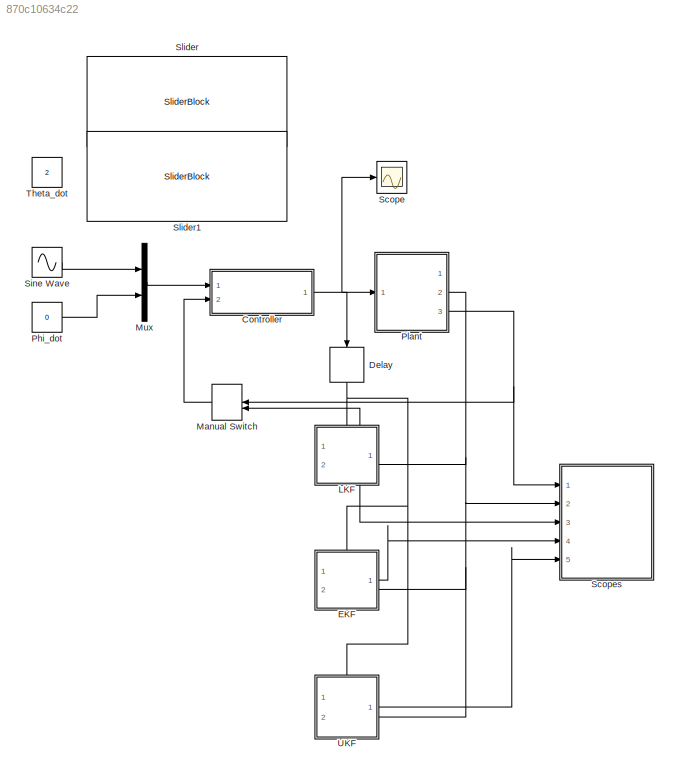
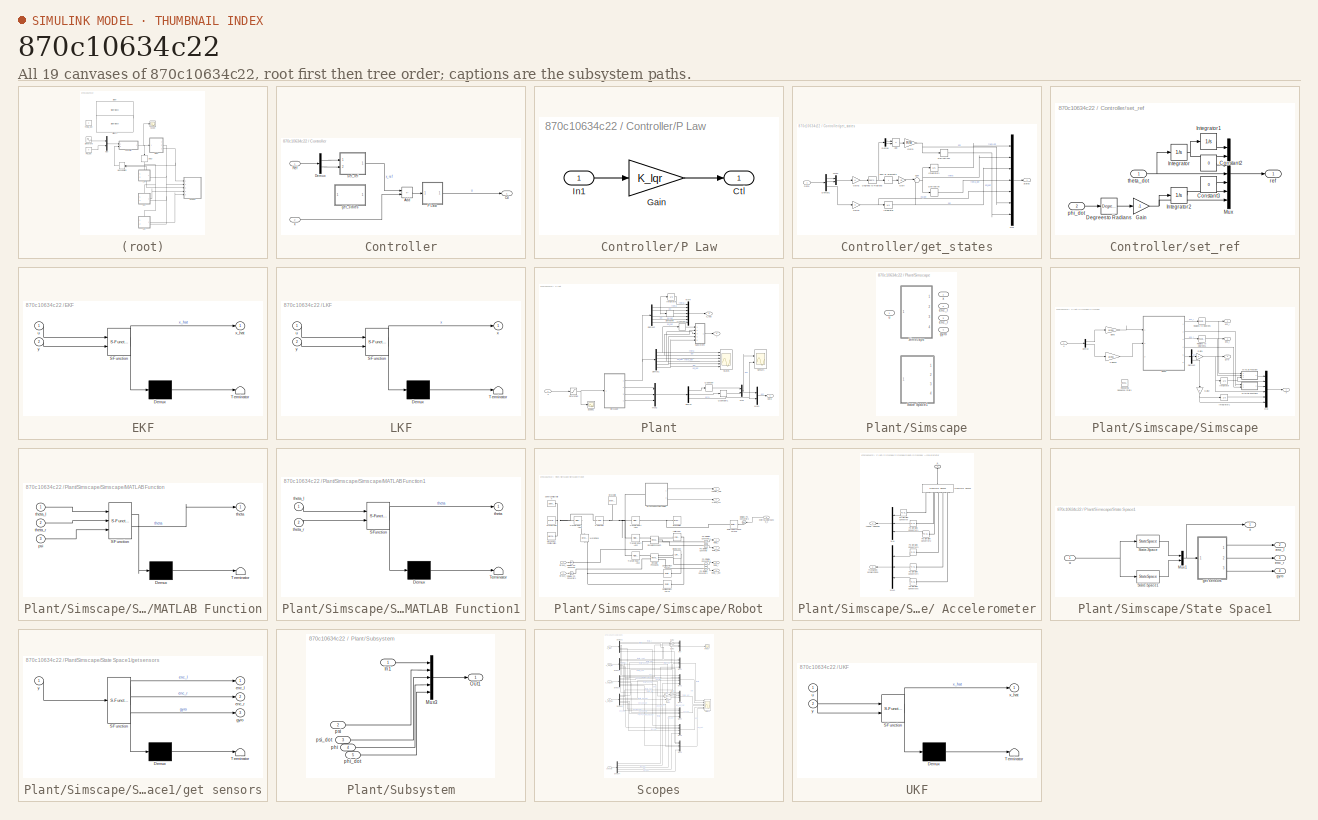
[diagram: thumbnail index - all 19 canvases of the model, root first then tree order]
MODEL slx_870c10634c22
KIND model
CONFIG AbsTol = auto
CONFIG EnableMultiTasking = off
CONFIG FixedStep = 1e-3
CONFIG InitFcn = init\npreload
CONFIG MaxStep = auto
CONFIG MinStep = auto
CONFIG PreLoadFcn = preload
CONFIG RelTol = 1e-3
CONFIG SampleTimeConstraint = Unconstrained
CONFIG SolverName = FixedStepAuto
CONFIG StartTime = 0.0
CONFIG StopTime = 10
BLOCK [SubSystem] Controller
  Ports = [2, 1]
  RequestExecContextInheritance = off
  SystemSampleTime = 0.01
BLOCK [Sum] Controller/Add
  IconShape = rectangular
  Inputs = +-
  Ports = [2, 1]
BLOCK [Outport] Controller/Ctl
  VectorParamsAs1DForOutWhenUnconnected = off
BLOCK [Demux] Controller/Demux
  Outputs = 2
  Ports = [1, 2]
BLOCK [SubSystem] Controller/P Law
  Ports = [1, 1]
  RequestExecContextInheritance = off
  SystemSampleTime = 0.01
  TreatAsAtomicUnit = on
BLOCK [Outport] Controller/P Law/Ctl
BLOCK [Gain] Controller/P Law/Gain
  Gain = K_lqr
  Multiplication = Matrix(K*u)
BLOCK [Inport] Controller/P Law/In1
BLOCK [Inport] Controller/Ref
BLOCK [SubSystem] Controller/get_states
  Commented = on
  Ports = [1, 1]
  RequestExecContextInheritance = off
BLOCK [Sum] Controller/get_states/Add
  IconShape = rectangular
  Inputs = -+
  Ports = [2, 1]
BLOCK [Inport] Controller/get_states/Data
BLOCK [Reference] Controller/get_states/Degrees to Radians  REF=simulink_extras/Transformations/Degrees to
Radians
  Commented = through
  Ports = [1, 1]
  SourceBlock = simulink_extras/Transformations/Degrees to\nRadians
  SourceProductBaseCode = SL
  SourceType = DegreesToRadians
BLOCK [Demux] Controller/get_states/Demux
  Outputs = 2
  Ports = [1, 2]
BLOCK [Demux] Controller/get_states/Demux1
  Outputs = 3
  Ports = [1, 3]
BLOCK [Derivative] Controller/get_states/Derivative
BLOCK [Derivative] Controller/get_states/Derivative1
  CoefficientInTFapproximation = 0.01
BLOCK [Gain] Controller/get_states/Gain
  Gain = 1/2
BLOCK [Gain] Controller/get_states/Gain1
  Gain = R/W
BLOCK [Gain] Controller/get_states/Gain2
BLOCK [Gain] Controller/get_states/Gain3
BLOCK [Integrator] Controller/get_states/Integrator
  Ports = [1, 1]
BLOCK [Integrator] Controller/get_states/Integrator1
  Ports = [1, 1]
BLOCK [Mux] Controller/get_states/Mux
  DisplayOption = bar
  Inputs = 7
  Ports = [7, 1]
BLOCK [Mux] Controller/get_states/Mux1
  DisplayOption = bar
  Inputs = 2
  Ports = [2, 1]
BLOCK [Outport] Controller/get_states/States
  VectorParamsAs1DForOutWhenUnconnected = off
BLOCK [Sum] Controller/get_states/Sum
  Inputs = |++
  Ports = [2, 1]
BLOCK [Sum] Controller/get_states/Sum of Elements
  IconShape = rectangular
  Inputs = +
  Ports = [1, 1]
BLOCK [SubSystem] Controller/set_ref
  Ports = [2, 1]
  RequestExecContextInheritance = off
BLOCK [Constant] Controller/set_ref/Constant2
  Value = 0
BLOCK [Constant] Controller/set_ref/Constant3
  Value = 0
BLOCK [Reference] Controller/set_ref/Degrees to Radians  REF=simulink_extras/Transformations/Degrees to
Radians
  Commented = through
  Ports = [1, 1]
  SourceBlock = simulink_extras/Transformations/Degrees to\nRadians
  SourceProductBaseCode = SL
  SourceType = DegreesToRadians
BLOCK [Gain] Controller/set_ref/Gain
  Gain = -1
BLOCK [Integrator] Controller/set_ref/Integrator
  Ports = [1, 1]
BLOCK [Integrator] Controller/set_ref/Integrator1
  Ports = [1, 1]
BLOCK [Integrator] Controller/set_ref/Integrator2
  Ports = [1, 1]
BLOCK [Mux] Controller/set_ref/Mux
  DisplayOption = bar
  Inputs = 7
  Ports = [7, 1]
BLOCK [Inport] Controller/set_ref/phi_dot
  Port = 2
BLOCK [Outport] Controller/set_ref/ref
  VectorParamsAs1DForOutWhenUnconnected = off
BLOCK [Inport] Controller/set_ref/theta_dot
BLOCK [Inport] Controller/x
  Port = 2
BLOCK [Delay] Delay
  DelayLength = 1
  InputPortMap = u0
  NameLocation = left
  Ports = [1, 1]
BLOCK [SubSystem] EKF
  ErrorFcn = Stateflow.Translate.translate
  PermitHierarchicalResolution = ExplicitOnly
  PortSchema = {"entries":[{"content":{"sides":[{"content":{"connectorIds":[]},"type":"ConnectorPlacement.EquallySpacedRectSide","uuid":"7365e1c5-a084-40ff-bf9b-f6bb3324d08a"},{"content":{"connectorIds":["In2","Out1"],"side":"RIGHT"},"type":"ConnectorPlacement.EquallySpacedRectSide","uuid":"e745d55e-2f97-4317-b982-3a71d81393c6"},{"content":{"connectorIds":["In1"],"side":"TOP"},"type":"ConnectorPlacement.EquallyS...<+246ch>
  Ports = [2, 1]
  RequestExecContextInheritance = off
  SFBlockType = Chart
  SystemSampleTime = Ts
  TreatAsAtomicUnit = on
BLOCK [Demux] EKF/ Demux 
  Outputs = 1
  Ports = [1, 1]
BLOCK [S-Function] EKF/ SFunction 
  EnableBusSupport = on
  FunctionName = sf_sfun
  Parameters = H_ekf,Jm,Jphi,Jpsi,Jw,Kt,L,M,P0_ekf,Q_ekf,R,R_ekf,Ts,W,fm,fw,g,m,n,x0_ekf
  PortCounts = [2 2]
  Ports = [2, 2]
  SFcnIsStateOwnerBlock = off
  SFunctionDeploymentMode = off
  Tag = Stateflow S-Function 4
BLOCK [Terminator] EKF/ Terminator 
BLOCK [Inport] EKF/u
BLOCK [Outport] EKF/x_hat
BLOCK [Inport] EKF/y
  Port = 2
BLOCK [SubSystem] LKF
  ErrorFcn = Stateflow.Translate.translate
  PermitHierarchicalResolution = ExplicitOnly
  PortSchema = {"entries":[{"content":{"sides":[{"content":{"connectorIds":["Out1"]},"type":"ConnectorPlacement.EquallySpacedRectSide","uuid":"7365e1c5-a084-40ff-bf9b-f6bb3324d08a"},{"content":{"connectorIds":["In2"],"side":"RIGHT"},"type":"ConnectorPlacement.EquallySpacedRectSide","uuid":"e745d55e-2f97-4317-b982-3a71d81393c6"},{"content":{"connectorIds":["In1"],"side":"TOP"},"type":"ConnectorPlacement.EquallySp...<+245ch>
  Ports = [2, 1]
  RequestExecContextInheritance = off
  SFBlockType = Chart
  SystemSampleTime = Ts
  TreatAsAtomicUnit = on
BLOCK [Demux] LKF/ Demux 
  Outputs = 1
  Ports = [1, 1]
BLOCK [S-Function] LKF/ SFunction 
  EnableBusSupport = on
  FunctionName = sf_sfun
  Parameters = Fd,Gd,H_lkf,P0_lkf,Q_lkf,R_lkf,x0_lkf
  PortCounts = [2 2]
  Ports = [2, 2]
  SFcnIsStateOwnerBlock = off
  SFunctionDeploymentMode = off
  Tag = Stateflow S-Function 2
BLOCK [Terminator] LKF/ Terminator 
BLOCK [Inport] LKF/u
BLOCK [Outport] LKF/x
BLOCK [Inport] LKF/y
  Port = 2
BLOCK [ManualSwitch] Manual Switch
  CurrentSetting = 0
BLOCK [Mux] Mux
  DisplayOption = bar
  Inputs = 2
  Ports = [2, 1]
BLOCK [Constant] Phi_dot
  Value = 0
BLOCK [SubSystem] Plant
  Ports = [1, 3]
  RequestExecContextInheritance = off
BLOCK [Demux] Plant/Demux
  Outputs = 3
  Ports = [1, 3]
BLOCK [Demux] Plant/Demux1
  Outputs = 6
  Ports = [1, 6]
BLOCK [Demux] Plant/Demux2
  Outputs = 6
  Ports = [1, 6]
BLOCK [Derivative] Plant/Derivative
BLOCK [Integrator] Plant/Integrator
  Ports = [1, 1]
BLOCK [Mux] Plant/Mux
  DisplayOption = bar
  Inputs = 2
  Ports = [2, 1]
BLOCK [Mux] Plant/Mux1
  DisplayOption = bar
  Inputs = 2
  Ports = [2, 1]
BLOCK [Mux] Plant/Mux2
  DisplayOption = bar
  Inputs = 3
  Ports = [3, 1]
BLOCK [Mux] Plant/Mux4
  DisplayOption = bar
  Inputs = 7
  Ports = [7, 1]
BLOCK [Quantizer] Plant/Quantizer
  Commented = through
  QuantizationInterval = pi/45
BLOCK [Quantizer] Plant/Quantizer1
  Commented = through
  QuantizationInterval = pi/45
BLOCK [Quantizer] Plant/Quantizer2
  QuantizationInterval = pi/45
BLOCK [Saturate] Plant/Saturation
  LowerLimit = -40
  UpperLimit = 40
BLOCK [Scope] Plant/Scope1
  Floating = off
  NumInputPorts = 1
  Ports = [1]
  ScopeSpecificationString = Simulink.scopes.TimeScopeBlockCfg('CurrentConfiguration', extmgr.ConfigurationSet(extmgr.Configuration('Core','General UI',true),extmgr.Configuration('Core','Source UI',true),extmgr.Configuration('Sources','WiredSimulink',true,'DataLoggingVariableName','ScopeData3'),extmgr.Configuration('Visuals','Time Domain',true,'SerializedDisplays',{struct('MinYLimReal','-0.80846','MaxYLimReal','1.04504','YLab...<+1444ch>
BLOCK [Scope] Plant/Sensors
  Floating = off
  NumInputPorts = 2
  Ports = [2]
  ScopeSpecificationString = Simulink.scopes.TimeScopeBlockCfg('CurrentConfiguration', extmgr.ConfigurationSet(extmgr.Configuration('Core','General UI',true),extmgr.Configuration('Core','Source UI',true),extmgr.Configuration('Sources','WiredSimulink',true,'DataLoggingVariableName','ScopeData1'),extmgr.Configuration('Visuals','Time Domain',true,'SerializedDisplays',{struct('MinYLimReal','-1.42633','MaxYLimReal','11.44314','YLa...<+2017ch>
BLOCK [SubSystem] Plant/Simscape
  Ports = [1, 4]
  RequestExecContextInheritance = off
  Variant = on
  VariantControl = Choice
BLOCK [SubSystem] Plant/Simscape/Simscape
  Ports = [1, 4]
  RequestExecContextInheritance = off
  VariantControl = (default)
BLOCK [Gain] Plant/Simscape/Simscape/1//alpha1
  Gain = alpha
BLOCK [Demux] Plant/Simscape/Simscape/Demux
  Outputs = 2
  Ports = [1, 2]
BLOCK [Demux] Plant/Simscape/Simscape/Demux2
  Outputs = 3
  Ports = [1, 3]
BLOCK [Gain] Plant/Simscape/Simscape/Gain1
BLOCK [Gain] Plant/Simscape/Simscape/Gain2
  NameLocation = left
BLOCK [Integrator] Plant/Simscape/Simscape/Integrator
  Ports = [1, 1]
BLOCK [Integrator] Plant/Simscape/Simscape/Integrator1
  Ports = [1, 1]
BLOCK [SubSystem] Plant/Simscape/Simscape/MATLAB Function
  ErrorFcn = Stateflow.Translate.translate
  PermitHierarchicalResolution = ExplicitOnly
  Ports = [3, 1]
  RequestExecContextInheritance = off
  SFBlockType = MATLAB Function
  TreatAsAtomicUnit = on
BLOCK [Demux] Plant/Simscape/Simscape/MATLAB Function/ Demux 
  Outputs = 1
  Ports = [1, 1]
BLOCK [S-Function] Plant/Simscape/Simscape/MATLAB Function/ SFunction 
  EnableBusSupport = on
  FunctionName = sf_sfun
  PortCounts = [3 2]
  Ports = [3, 2]
  SFcnIsStateOwnerBlock = off
  SFunctionDeploymentMode = off
  Tag = Stateflow S-Function 1
BLOCK [Terminator] Plant/Simscape/Simscape/MATLAB Function/ Terminator 
BLOCK [Inport] Plant/Simscape/Simscape/MATLAB Function/psi
  Port = 3
BLOCK [Outport] Plant/Simscape/Simscape/MATLAB Function/theta
BLOCK [Inport] Plant/Simscape/Simscape/MATLAB Function/theta_l
BLOCK [Inport] Plant/Simscape/Simscape/MATLAB Function/theta_r
  Port = 2
BLOCK [SubSystem] Plant/Simscape/Simscape/MATLAB Function1
  ErrorFcn = Stateflow.Translate.translate
  PermitHierarchicalResolution = ExplicitOnly
  Ports = [2, 1]
  RequestExecContextInheritance = off
  SFBlockType = MATLAB Function
  TreatAsAtomicUnit = on
BLOCK [Demux] Plant/Simscape/Simscape/MATLAB Function1/ Demux 
  Outputs = 1
  Ports = [1, 1]
BLOCK [S-Function] Plant/Simscape/Simscape/MATLAB Function1/ SFunction 
  EnableBusSupport = on
  FunctionName = sf_sfun
  PortCounts = [2 2]
  Ports = [2, 2]
  SFcnIsStateOwnerBlock = off
  SFunctionDeploymentMode = off
  Tag = Stateflow S-Function 3
BLOCK [Terminator] Plant/Simscape/Simscape/MATLAB Function1/ Terminator 
BLOCK [Outport] Plant/Simscape/Simscape/MATLAB Function1/theta
BLOCK [Inport] Plant/Simscape/Simscape/MATLAB Function1/theta_l
BLOCK [Inport] Plant/Simscape/Simscape/MATLAB Function1/theta_r
  Port = 2
BLOCK [Mux] Plant/Simscape/Simscape/Mux
  DisplayOption = bar
  Inputs = 6
  Ports = [6, 1]
BLOCK [Reference] Plant/Simscape/Simscape/Radians to Degrees  REF=simulink_extras/Transformations/Radians
to Degrees
  Commented = through
  Ports = [1, 1]
  SourceBlock = simulink_extras/Transformations/Radians\nto Degrees
  SourceProductBaseCode = SL
  SourceType = RadiansToDegrees
BLOCK [Reference] Plant/Simscape/Simscape/Radians to Degrees1  REF=simulink_extras/Transformations/Radians
to Degrees
  Commented = through
  Ports = [1, 1]
  SourceBlock = simulink_extras/Transformations/Radians\nto Degrees
  SourceProductBaseCode = SL
  SourceType = RadiansToDegrees
BLOCK [Reference] Plant/Simscape/Simscape/Repeating Sequence Stair3  REF=simulink/Sources/Repeating
Sequence
Stair
  Ports = [0, 1]
  SourceBlock = simulink/Sources/Repeating\nSequence\nStair
  SourceProductBaseCode = SL
  SourceType = Repeating Sequence Stair
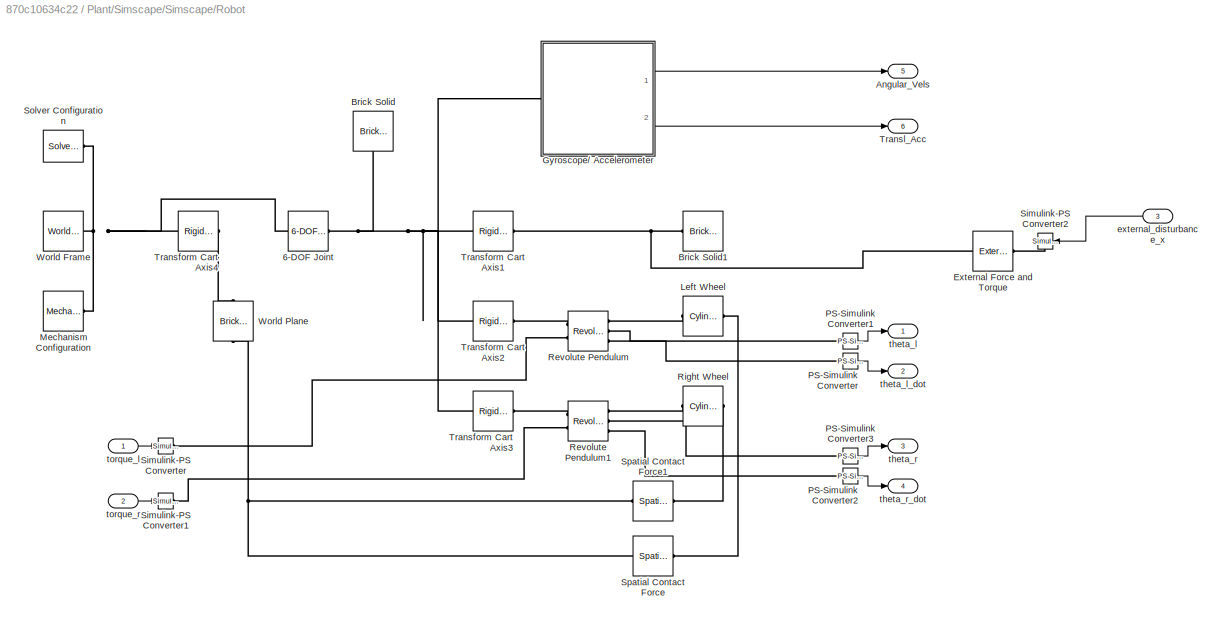
BLOCK [SubSystem] Plant/Simscape/Simscape/Robot
  Ports = [3, 6]
  RequestExecContextInheritance = off
BLOCK [Reference] Plant/Simscape/Simscape/Robot/6-DOF Joint  REF=sm_lib/Joints/6-DOF Joint
  Ports = [0, 0, 0, 0, 0, 1, 1]
  SourceBlock = sm_lib/Joints/6-DOF Joint
  SourceProductBaseCode = MS
  SourceType = 6-DOF Joint
BLOCK [Outport] Plant/Simscape/Simscape/Robot/Angular_Vels
  Port = 5
BLOCK [Reference] Plant/Simscape/Simscape/Robot/Brick Solid  REF=sm_lib/Body Elements/Brick Solid
  NameLocation = left
  Ports = [0, 0, 0, 0, 0, 0, 1]
  SourceBlock = sm_lib/Body Elements/Brick Solid
  SourceProductBaseCode = MS
  SourceType = Brick Solid
BLOCK [Reference] Plant/Simscape/Simscape/Robot/Brick Solid1  REF=sm_lib/Body Elements/Brick Solid
  NameLocation = top
  Ports = [0, 0, 0, 0, 0, 1, 1]
  SourceBlock = sm_lib/Body Elements/Brick Solid
  SourceProductBaseCode = MS
  SourceType = Brick Solid
BLOCK [Reference] Plant/Simscape/Simscape/Robot/External Force and Torque  REF=sm_lib/Forces and
Torques/External Force
and Torque
  Ports = [0, 0, 0, 0, 0, 1, 1]
  SourceBlock = sm_lib/Forces and\nTorques/External Force\nand Torque
  SourceProductBaseCode = MS
  SourceType = External Force\nand Torque
BLOCK [SubSystem] Plant/Simscape/Simscape/Robot/Gyroscope// Accelerometer
  Ports = [0, 2, 0, 0, 0, 1]
  RequestExecContextInheritance = off
BLOCK [Outport] Plant/Simscape/Simscape/Robot/Gyroscope// Accelerometer/Angular velocities
BLOCK [PMIOPort] Plant/Simscape/Simscape/Robot/Gyroscope// Accelerometer/B
  NameLocation = right
  Side = Left
BLOCK [Mux] Plant/Simscape/Simscape/Robot/Gyroscope// Accelerometer/Mux
  DisplayOption = bar
  Inputs = 3
  NameLocation = top
  Ports = [3, 1]
BLOCK [Mux] Plant/Simscape/Simscape/Robot/Gyroscope// Accelerometer/Mux1
  DisplayOption = bar
  Inputs = 3
  NameLocation = top
  Ports = [3, 1]
BLOCK [Reference] Plant/Simscape/Simscape/Robot/Gyroscope// Accelerometer/PS-Simulink Converter  REF=nesl_utility/PS-Simulink
Converter
  Ports = [0, 1, 0, 0, 0, 1]
  SourceBlock = nesl_utility/PS-Simulink\nConverter
  SourceProductBaseCode = PW,SS
  SourceType = PS-Simulink\nConverter
BLOCK [Reference] Plant/Simscape/Simscape/Robot/Gyroscope// Accelerometer/PS-Simulink Converter1  REF=nesl_utility/PS-Simulink
Converter
  Ports = [0, 1, 0, 0, 0, 1]
  SourceBlock = nesl_utility/PS-Simulink\nConverter
  SourceProductBaseCode = PW,SS
  SourceType = PS-Simulink\nConverter
BLOCK [Reference] Plant/Simscape/Simscape/Robot/Gyroscope// Accelerometer/PS-Simulink Converter2  REF=nesl_utility/PS-Simulink
Converter
  Ports = [0, 1, 0, 0, 0, 1]
  SourceBlock = nesl_utility/PS-Simulink\nConverter
  SourceProductBaseCode = PW,SS
  SourceType = PS-Simulink\nConverter
BLOCK [Reference] Plant/Simscape/Simscape/Robot/Gyroscope// Accelerometer/PS-Simulink Converter3  REF=nesl_utility/PS-Simulink
Converter
  Ports = [0, 1, 0, 0, 0, 1]
  SourceBlock = nesl_utility/PS-Simulink\nConverter
  SourceProductBaseCode = PW,SS
  SourceType = PS-Simulink\nConverter
BLOCK [Reference] Plant/Simscape/Simscape/Robot/Gyroscope// Accelerometer/PS-Simulink Converter4  REF=nesl_utility/PS-Simulink
Converter
  Ports = [0, 1, 0, 0, 0, 1]
  SourceBlock = nesl_utility/PS-Simulink\nConverter
  SourceProductBaseCode = PW,SS
  SourceType = PS-Simulink\nConverter
BLOCK [Reference] Plant/Simscape/Simscape/Robot/Gyroscope// Accelerometer/PS-Simulink Converter5  REF=nesl_utility/PS-Simulink
Converter
  Ports = [0, 1, 0, 0, 0, 1]
  SourceBlock = nesl_utility/PS-Simulink\nConverter
  SourceProductBaseCode = PW,SS
  SourceType = PS-Simulink\nConverter
BLOCK [Reference] Plant/Simscape/Simscape/Robot/Gyroscope// Accelerometer/Transform Sensor  REF=sm_lib/Frames and
Transforms/Transform
Sensor
  NameLocation = left
  Ports = [0, 0, 0, 0, 0, 1, 7]
  SourceBlock = sm_lib/Frames and\nTransforms/Transform\nSensor
  SourceProductBaseCode = MS
  SourceType = Transform\nSensor
BLOCK [Outport] Plant/Simscape/Simscape/Robot/Gyroscope// Accelerometer/Translation accelerations
  Port = 2
BLOCK [Reference] Plant/Simscape/Simscape/Robot/Left Wheel  REF=sm_lib/Body Elements/Cylindrical Solid
  NameLocation = top
  Ports = [0, 0, 0, 0, 0, 1, 1]
  SourceBlock = sm_lib/Body Elements/Cylindrical Solid
  SourceProductBaseCode = MS
  SourceType = Cylindrical Solid
BLOCK [Reference] Plant/Simscape/Simscape/Robot/Mechanism Configuration  REF=sm_lib/Utilities/Mechanism
Configuration
  Ports = [0, 0, 0, 0, 0, 0, 1]
  SourceBlock = sm_lib/Utilities/Mechanism\nConfiguration
  SourceProductBaseCode = MS
  SourceType = Mechanism\nConfiguration
BLOCK [Reference] Plant/Simscape/Simscape/Robot/PS-Simulink Converter  REF=nesl_utility/PS-Simulink
Converter
  Ports = [0, 1, 0, 0, 0, 1]
  SourceBlock = nesl_utility/PS-Simulink\nConverter
  SourceProductBaseCode = SS,PW,VE
  SourceType = PS-Simulink\nConverter
BLOCK [Reference] Plant/Simscape/Simscape/Robot/PS-Simulink Converter1  REF=nesl_utility/PS-Simulink
Converter
  Ports = [0, 1, 0, 0, 0, 1]
  SourceBlock = nesl_utility/PS-Simulink\nConverter
  SourceProductBaseCode = SS,PW,VE
  SourceType = PS-Simulink\nConverter
BLOCK [Reference] Plant/Simscape/Simscape/Robot/PS-Simulink Converter2  REF=nesl_utility/PS-Simulink
Converter
  Ports = [0, 1, 0, 0, 0, 1]
  SourceBlock = nesl_utility/PS-Simulink\nConverter
  SourceProductBaseCode = SS,PW,VE
  SourceType = PS-Simulink\nConverter
BLOCK [Reference] Plant/Simscape/Simscape/Robot/PS-Simulink Converter3  REF=nesl_utility/PS-Simulink
Converter
  Ports = [0, 1, 0, 0, 0, 1]
  SourceBlock = nesl_utility/PS-Simulink\nConverter
  SourceProductBaseCode = SS,PW,VE
  SourceType = PS-Simulink\nConverter
BLOCK [Reference] Plant/Simscape/Simscape/Robot/Revolute Pendulum  REF=sm_lib/Joints/Revolute Joint
  Ports = [0, 0, 0, 0, 0, 2, 3]
  SourceBlock = sm_lib/Joints/Revolute Joint
  SourceProductBaseCode = MS
  SourceType = Revolute Joint
BLOCK [Reference] Plant/Simscape/Simscape/Robot/Revolute Pendulum1  REF=sm_lib/Joints/Revolute Joint
  Ports = [0, 0, 0, 0, 0, 2, 3]
  SourceBlock = sm_lib/Joints/Revolute Joint
  SourceProductBaseCode = MS
  SourceType = Revolute Joint
BLOCK [Reference] Plant/Simscape/Simscape/Robot/Right Wheel  REF=sm_lib/Body Elements/Cylindrical Solid
  NameLocation = top
  Ports = [0, 0, 0, 0, 0, 1, 1]
  SourceBlock = sm_lib/Body Elements/Cylindrical Solid
  SourceProductBaseCode = MS
  SourceType = Cylindrical Solid
BLOCK [Reference] Plant/Simscape/Simscape/Robot/Simulink-PS Converter  REF=nesl_utility/Simulink-PS
Converter
  Ports = [1, 0, 0, 0, 0, 0, 1]
  SourceBlock = nesl_utility/Simulink-PS\nConverter
  SourceProductBaseCode = SS,PW,VE
  SourceType = Simulink-PS\nConverter
BLOCK [Reference] Plant/Simscape/Simscape/Robot/Simulink-PS Converter1  REF=nesl_utility/Simulink-PS
Converter
  Ports = [1, 0, 0, 0, 0, 0, 1]
  SourceBlock = nesl_utility/Simulink-PS\nConverter
  SourceProductBaseCode = SS,PW,VE
  SourceType = Simulink-PS\nConverter
BLOCK [Reference] Plant/Simscape/Simscape/Robot/Simulink-PS Converter2  REF=nesl_utility/Simulink-PS
Converter
  Ports = [1, 0, 0, 0, 0, 0, 1]
  SourceBlock = nesl_utility/Simulink-PS\nConverter
  SourceProductBaseCode = SS,PW,VE
  SourceType = Simulink-PS\nConverter
BLOCK [Reference] Plant/Simscape/Simscape/Robot/Solver Configuration  REF=nesl_utility/Solver
Configuration
  Ports = [0, 0, 0, 0, 0, 0, 1]
  SourceBlock = nesl_utility/Solver\nConfiguration
  SourceProductBaseCode = SS,PW,VE
  SourceType = Solver\nConfiguration
BLOCK [Reference] Plant/Simscape/Simscape/Robot/Spatial Contact Force  REF=sm_lib/Forces and
Torques/Spatial
Contact Force
  Ports = [0, 0, 0, 0, 0, 1, 1]
  SourceBlock = sm_lib/Forces and\nTorques/Spatial\nContact Force
  SourceProductBaseCode = MS
  SourceType = Spatial\nContact Force
BLOCK [Reference] Plant/Simscape/Simscape/Robot/Spatial Contact Force1  REF=sm_lib/Forces and
Torques/Spatial
Contact Force
  Ports = [0, 0, 0, 0, 0, 1, 1]
  SourceBlock = sm_lib/Forces and\nTorques/Spatial\nContact Force
  SourceProductBaseCode = MS
  SourceType = Spatial\nContact Force
BLOCK [Reference] Plant/Simscape/Simscape/Robot/Transform Cart Axis1  REF=sm_lib/Frames and
Transforms/Rigid
Transform
  Ports = [0, 0, 0, 0, 0, 1, 1]
  SourceBlock = sm_lib/Frames and\nTransforms/Rigid\nTransform
  SourceProductBaseCode = MS
  SourceType = Rigid\nTransform
BLOCK [Reference] Plant/Simscape/Simscape/Robot/Transform Cart Axis2  REF=sm_lib/Frames and
Transforms/Rigid
Transform
  Ports = [0, 0, 0, 0, 0, 1, 1]
  SourceBlock = sm_lib/Frames and\nTransforms/Rigid\nTransform
  SourceProductBaseCode = MS
  SourceType = Rigid\nTransform
BLOCK [Reference] Plant/Simscape/Simscape/Robot/Transform Cart Axis3  REF=sm_lib/Frames and
Transforms/Rigid
Transform
  Ports = [0, 0, 0, 0, 0, 1, 1]
  SourceBlock = sm_lib/Frames and\nTransforms/Rigid\nTransform
  SourceProductBaseCode = MS
  SourceType = Rigid\nTransform
BLOCK [Reference] Plant/Simscape/Simscape/Robot/Transform Cart Axis4  REF=sm_lib/Frames and
Transforms/Rigid
Transform
  Ports = [0, 0, 0, 0, 0, 1, 1]
  SourceBlock = sm_lib/Frames and\nTransforms/Rigid\nTransform
  SourceProductBaseCode = MS
  SourceType = Rigid\nTransform
BLOCK [Outport] Plant/Simscape/Simscape/Robot/Transl_Acc
  Port = 6
BLOCK [Reference] Plant/Simscape/Simscape/Robot/World Frame  REF=sm_lib/Frames and
Transforms/World Frame
  Ports = [0, 0, 0, 0, 0, 0, 1]
  SourceBlock = sm_lib/Frames and\nTransforms/World Frame
  SourceProductBaseCode = MS
  SourceType = World Frame
BLOCK [Reference] Plant/Simscape/Simscape/Robot/World Plane  REF=sm_lib/Body Elements/Brick Solid
  NameLocation = right
  Ports = [0, 0, 0, 0, 0, 1, 1]
  SourceBlock = sm_lib/Body Elements/Brick Solid
  SourceProductBaseCode = MS
  SourceType = Brick Solid
BLOCK [Inport] Plant/Simscape/Simscape/Robot/external_disturbance_x
  Port = 3
BLOCK [Outport] Plant/Simscape/Simscape/Robot/theta_l
BLOCK [Outport] Plant/Simscape/Simscape/Robot/theta_l_dot
  Port = 2
BLOCK [Outport] Plant/Simscape/Simscape/Robot/theta_r
  Port = 3
BLOCK [Outport] Plant/Simscape/Simscape/Robot/theta_r_dot
  Port = 4
BLOCK [Inport] Plant/Simscape/Simscape/Robot/torque_l
BLOCK [Inport] Plant/Simscape/Simscape/Robot/torque_r
  Port = 2
BLOCK [Gain] Plant/Simscape/Simscape/alpha
  Gain = alpha
BLOCK [Outport] Plant/Simscape/Simscape/enc_l
  Port = 2
BLOCK [Outport] Plant/Simscape/Simscape/enc_r
  Port = 3
BLOCK [Outport] Plant/Simscape/Simscape/gyro
  Port = 4
BLOCK [Inport] Plant/Simscape/Simscape/u
BLOCK [Outport] Plant/Simscape/Simscape/x
BLOCK [SubSystem] Plant/Simscape/State Space1
  Ports = [1, 4]
  RequestExecContextInheritance = off
  VariantControl = is_simscape == 0
BLOCK [Mux] Plant/Simscape/State Space1/Mux1
  DisplayOption = bar
  Inputs = 2
  Ports = [2, 1]
BLOCK [StateSpace] Plant/Simscape/State Space1/State-Space
  A = A1
  B = B1
  C = C1
  D = D1
  InitialCondition = 0
  Ports = [1, 1]
BLOCK [StateSpace] Plant/Simscape/State Space1/State-Space1
  A = A2
  B = B2
  C = C2
  D = D2
  InitialCondition = 0
  Ports = [1, 1]
BLOCK [Outport] Plant/Simscape/State Space1/enc_l
  Port = 2
BLOCK [Outport] Plant/Simscape/State Space1/enc_r
  Port = 3
BLOCK [SubSystem] Plant/Simscape/State Space1/get sensors
  ErrorFcn = Stateflow.Translate.translate
  PermitHierarchicalResolution = ExplicitOnly
  Ports = [1, 3]
  RequestExecContextInheritance = off
  SFBlockType = MATLAB Function
  TreatAsAtomicUnit = on
BLOCK [Demux] Plant/Simscape/State Space1/get sensors/ Demux 
  Outputs = 1
  Ports = [1, 1]
BLOCK [S-Function] Plant/Simscape/State Space1/get sensors/ SFunction 
  EnableBusSupport = on
  FunctionName = sf_sfun
  Parameters = R,W
  PortCounts = [1 4]
  Ports = [1, 4]
  SFcnIsStateOwnerBlock = off
  SFunctionDeploymentMode = off
  Tag = Stateflow S-Function 5
BLOCK [Terminator] Plant/Simscape/State Space1/get sensors/ Terminator 
BLOCK [Outport] Plant/Simscape/State Space1/get sensors/enc_l
  VectorParamsAs1DForOutWhenUnconnected = off
BLOCK [Outport] Plant/Simscape/State Space1/get sensors/enc_r
  Port = 2
  VectorParamsAs1DForOutWhenUnconnected = off
BLOCK [Outport] Plant/Simscape/State Space1/get sensors/gyro
  Port = 3
  VectorParamsAs1DForOutWhenUnconnected = off
BLOCK [Inport] Plant/Simscape/State Space1/get sensors/y
BLOCK [Outport] Plant/Simscape/State Space1/gyro
  Port = 4
BLOCK [Inport] Plant/Simscape/State Space1/u
BLOCK [Outport] Plant/Simscape/State Space1/x
BLOCK [Outport] Plant/Simscape/enc_l
  Port = 2
BLOCK [Outport] Plant/Simscape/enc_r
  Port = 3
BLOCK [Outport] Plant/Simscape/gyro
  Port = 4
BLOCK [Inport] Plant/Simscape/u
BLOCK [Outport] Plant/Simscape/x
BLOCK [Scope] Plant/States
  Floating = off
  NumInputPorts = 6
  Ports = [6]
  ScopeSpecificationString = Simulink.scopes.TimeScopeBlockCfg('CurrentConfiguration', extmgr.ConfigurationSet(extmgr.Configuration('Core','General UI',true),extmgr.Configuration('Core','Source UI',true),extmgr.Configuration('Sources','WiredSimulink',true),extmgr.Configuration('Visuals','Time Domain',true,'SerializedDisplays',{struct('MinYLimReal','-1.43117','MaxYLimReal','11.48427','YLabelReal','','MinYLimMag','0.00000','Max...<+5197ch>
BLOCK [SubSystem] Plant/Subsystem
  Ports = [5, 1]
  RequestExecContextInheritance = off
  SystemSampleTime = Ts
  TreatAsAtomicUnit = on
BLOCK [Inport] Plant/Subsystem/In1
BLOCK [Mux] Plant/Subsystem/Mux3
  DisplayOption = bar
  Inputs = 5
  Ports = [5, 1]
BLOCK [Outport] Plant/Subsystem/Out1
BLOCK [Inport] Plant/Subsystem/phi
  Port = 4
BLOCK [Inport] Plant/Subsystem/phi_dot
  Port = 5
BLOCK [Inport] Plant/Subsystem/psi
  Port = 2
BLOCK [Inport] Plant/Subsystem/psi_dot
  Port = 3
BLOCK [Outport] Plant/data
BLOCK [Inport] Plant/u
BLOCK [Outport] Plant/x_real
  Port = 3
BLOCK [Outport] Plant/y
  Port = 2
BLOCK [Scope] Scope
  Floating = off
  NumInputPorts = 1
  Ports = [1]
  ScopeSpecificationString = Simulink.scopes.TimeScopeBlockCfg('CurrentConfiguration', extmgr.ConfigurationSet(extmgr.Configuration('Core','General UI',true),extmgr.Configuration('Core','Source UI',true),extmgr.Configuration('Sources','WiredSimulink',true,'DataLoggingVariableName','ScopeData1'),extmgr.Configuration('Visuals','Time Domain',true,'SerializedDisplays',{struct('MinYLimReal','-4162.51503','MaxYLimReal','525.98182',...<+1450ch>
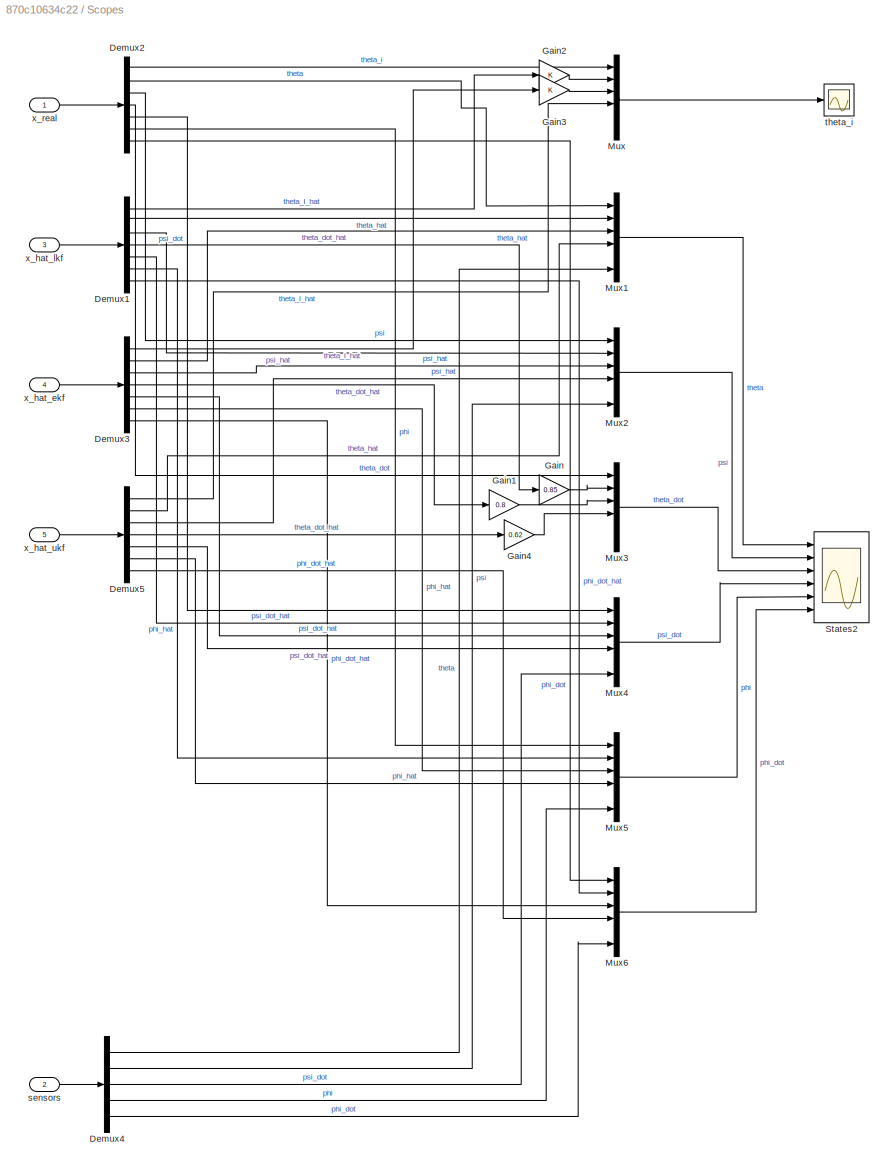
BLOCK [SubSystem] Scopes
  Ports = [5]
  RequestExecContextInheritance = off
BLOCK [Demux] Scopes/Demux1
  Outputs = 7
  Ports = [1, 7]
BLOCK [Demux] Scopes/Demux2
  Outputs = 7
  Ports = [1, 7]
BLOCK [Demux] Scopes/Demux3
  Outputs = 7
  Ports = [1, 7]
BLOCK [Demux] Scopes/Demux4
  Outputs = 5
  Ports = [1, 5]
BLOCK [Demux] Scopes/Demux5
  Outputs = 7
  Ports = [1, 7]
BLOCK [Gain] Scopes/Gain
  Gain = 0.85
BLOCK [Gain] Scopes/Gain1
  Gain = 0.8
BLOCK [Gain] Scopes/Gain2
BLOCK [Gain] Scopes/Gain3
BLOCK [Gain] Scopes/Gain4
  Gain = 0.62
BLOCK [Mux] Scopes/Mux
  DisplayOption = bar
  Inputs = 6
  Ports = [6, 1]
BLOCK [Mux] Scopes/Mux1
  DisplayOption = bar
  Inputs = 6
  Ports = [6, 1]
BLOCK [Mux] Scopes/Mux2
  DisplayOption = bar
  Inputs = 6
  Ports = [6, 1]
BLOCK [Mux] Scopes/Mux3
  DisplayOption = bar
  Inputs = 6
  Ports = [6, 1]
BLOCK [Mux] Scopes/Mux4
  DisplayOption = bar
  Inputs = 6
  Ports = [6, 1]
BLOCK [Mux] Scopes/Mux5
  DisplayOption = bar
  Inputs = 6
  Ports = [6, 1]
BLOCK [Mux] Scopes/Mux6
  DisplayOption = bar
  Inputs = 6
  Ports = [6, 1]
BLOCK [Scope] Scopes/States2
  Floating = off
  NumInputPorts = 6
  Ports = [6]
  ScopeSpecificationString = Simulink.scopes.TimeScopeBlockCfg('CurrentConfiguration', extmgr.ConfigurationSet(extmgr.Configuration('Core','General UI',true),extmgr.Configuration('Core','Source UI',true),extmgr.Configuration('Sources','WiredSimulink',true,'DataLoggingVariableName','ScopeData4'),extmgr.Configuration('Visuals','Time Domain',true,'SerializedDisplays',{struct('MinYLimReal','-0.88231','MaxYLimReal','2.83838','YLab...<+5822ch>
BLOCK [Inport] Scopes/sensors
  Port = 2
BLOCK [Scope] Scopes/theta_i
  Floating = off
  NumInputPorts = 1
  Ports = [1]
  ScopeSpecificationString = Simulink.scopes.TimeScopeBlockCfg('CurrentConfiguration', extmgr.ConfigurationSet(extmgr.Configuration('Core','General UI',true),extmgr.Configuration('Core','Source UI',true),extmgr.Configuration('Sources','WiredSimulink',true,'DataLoggingVariableName','ScopeData1'),extmgr.Configuration('Visuals','Time Domain',true,'SerializedDisplays',{struct('MinYLimReal','-1.31071','MaxYLimReal','11.76575','YLa...<+1657ch>
BLOCK [Inport] Scopes/x_hat_ekf
  Port = 4
BLOCK [Inport] Scopes/x_hat_lkf
  Port = 3
BLOCK [Inport] Scopes/x_hat_ukf
  Port = 5
BLOCK [Inport] Scopes/x_real
BLOCK [Sin] Sine Wave
  Ports = [0, 1]
  SampleTime = 0
BLOCK [SliderBlock] Slider
  ScaleMax = 4
  ScaleMin = -4
BLOCK [SliderBlock] Slider1
  ScaleMax = 50
  ScaleMin = -50
BLOCK [Constant] Theta_dot
  Value = 2
BLOCK [SubSystem] UKF
  ErrorFcn = Stateflow.Translate.translate
  PermitHierarchicalResolution = ExplicitOnly
  PortSchema = {"entries":[{"content":{"sides":[{"content":{"connectorIds":[]},"type":"ConnectorPlacement.EquallySpacedRectSide","uuid":"7365e1c5-a084-40ff-bf9b-f6bb3324d08a"},{"content":{"connectorIds":["In2","Out1"],"side":"RIGHT"},"type":"ConnectorPlacement.EquallySpacedRectSide","uuid":"e745d55e-2f97-4317-b982-3a71d81393c6"},{"content":{"connectorIds":["In1"],"side":"TOP"},"type":"ConnectorPlacement.EquallyS...<+246ch>
  Ports = [2, 1]
  RequestExecContextInheritance = off
  SFBlockType = Chart
  SystemSampleTime = Ts
  TreatAsAtomicUnit = on
BLOCK [Demux] UKF/ Demux 
  Outputs = 1
  Ports = [1, 1]
BLOCK [S-Function] UKF/ SFunction 
  EnableBusSupport = on
  FunctionName = sf_sfun
  Parameters = H_ukf,Jm,Jphi,Jpsi,Jw,Kt,L,M,N_ukf,P0_ukf,Q_ukf,R,R_ukf,Ts,W,Z0_ukf,chi0,fm,fw,g,lambda_ukf,m,n,w_c_ukf,w_m_ukf,x0_ukf
  PortCounts = [2 2]
  Ports = [2, 2]
  SFcnIsStateOwnerBlock = off
  SFunctionDeploymentMode = off
  Tag = Stateflow S-Function 6
BLOCK [Terminator] UKF/ Terminator 
BLOCK [Inport] UKF/u
BLOCK [Outport] UKF/x_hat
BLOCK [Inport] UKF/y
  Port = 2
LINE Controller/Add:1 -> Controller/P Law:1
LINE Controller/Demux:1 -> Controller/set_ref:1
LINE Controller/Demux:2 -> Controller/set_ref:2
LINE Controller/P Law/Gain:1 -> Controller/P Law/Ctl:1
LINE Controller/P Law/In1:1 -> Controller/P Law/Gain:1
LINE Controller/P Law:1 -> Controller/Ctl:1
LINE Controller/Ref:1 -> Controller/Demux:1
LINE Controller/get_states/Add:1 -> Controller/get_states/Gain1:1
LINE Controller/get_states/Data:1 -> Controller/get_states/Demux1:1
NET Controller/get_states/Degrees to Radians:1 -> Controller/get_states/Demux:1, Controller/get_states/Sum of Elements:1
LINE Controller/get_states/Demux1:1 -> Controller/get_states/Mux1:1
LINE Controller/get_states/Demux1:2 -> Controller/get_states/Mux1:2
LINE Controller/get_states/Demux1:3 -> Controller/get_states/Gain3:1
LINE Controller/get_states/Demux:1 -> Controller/get_states/Add:1
LINE Controller/get_states/Demux:2 -> Controller/get_states/Add:2
LINE Controller/get_states/Derivative1:1 -> Controller/get_states/Mux:7
LINE Controller/get_states/Derivative:1 -> Controller/get_states/Mux:4
NET Controller/get_states/Gain1:1 -> Controller/get_states/Derivative1:1, Controller/get_states/Mux:6
LINE Controller/get_states/Gain2:1 -> Controller/get_states/Degrees to Radians:1
NET Controller/get_states/Gain3:1 -> Controller/get_states/Integrator:1, Controller/get_states/Mux:5
LINE Controller/get_states/Gain:1 -> Controller/get_states/Sum:1
LINE Controller/get_states/Integrator1:1 -> Controller/get_states/Mux:1
NET Controller/get_states/Integrator:1 -> Controller/get_states/Mux:3, Controller/get_states/Sum:2
LINE Controller/get_states/Mux1:1 -> Controller/get_states/Gain2:1
LINE Controller/get_states/Mux:1 -> Controller/get_states/States:1
LINE Controller/get_states/Sum of Elements:1 -> Controller/get_states/Gain:1
NET Controller/get_states/Sum:1 -> Controller/get_states/Derivative:1, Controller/get_states/Integrator1:1, Controller/get_states/Mux:2
LINE Controller/set_ref/Constant2:1 -> Controller/set_ref/Mux:3
LINE Controller/set_ref/Constant3:1 -> Controller/set_ref/Mux:5
LINE Controller/set_ref/Degrees to Radians:1 -> Controller/set_ref/Gain:1
NET Controller/set_ref/Gain:1 -> Controller/set_ref/Integrator2:1, Controller/set_ref/Mux:7
LINE Controller/set_ref/Integrator1:1 -> Controller/set_ref/Mux:1
LINE Controller/set_ref/Integrator2:1 -> Controller/set_ref/Mux:6
NET Controller/set_ref/Integrator:1 -> Controller/set_ref/Integrator1:1, Controller/set_ref/Mux:2
LINE Controller/set_ref/Mux:1 -> Controller/set_ref/ref:1
LINE Controller/set_ref/phi_dot:1 -> Controller/set_ref/Degrees to Radians:1
NET Controller/set_ref/theta_dot:1 -> Controller/set_ref/Integrator:1, Controller/set_ref/Mux:4
LINE Controller/set_ref:1 -> Controller/Add:1
LINE Controller/x:1 -> Controller/Add:2
NET Controller:1 -> Delay:1, Plant:1, Scope:1
NET Delay:1 -> EKF:1, LKF:1, UKF:1
LINE EKF:1 -> Scopes:4
NET LKF:1 -> Manual Switch:2, Scopes:3
LINE Manual Switch:1 -> Controller:2
LINE Mux:1 -> Controller:1
LINE Phi_dot:1 -> Mux:2
NET Plant/Demux1:1 -> Plant/Quantizer2:1, Plant/States:1
NET Plant/Demux1:2 -> Plant/States:2, Plant/Subsystem:2
LINE Plant/Demux1:3 -> Plant/States:3
NET Plant/Demux1:4 -> Plant/States:4, Plant/Subsystem:3
NET Plant/Demux1:5 -> Plant/States:5, Plant/Subsystem:4
NET Plant/Demux1:6 -> Plant/States:6, Plant/Subsystem:5
NET Plant/Demux2:1 -> Plant/Derivative:1, Plant/Integrator:1, Plant/Mux4:2
LINE Plant/Demux2:2 -> Plant/Mux4:3
LINE Plant/Demux2:4 -> Plant/Mux4:5
LINE Plant/Demux2:5 -> Plant/Mux4:6
LINE Plant/Demux2:6 -> Plant/Mux4:7
LINE Plant/Demux:1 -> Plant/Quantizer:1
LINE Plant/Demux:2 -> Plant/Quantizer1:1
NET Plant/Demux:3 -> Plant/Mux1:2, Plant/Sensors:2
LINE Plant/Derivative:1 -> Plant/Mux4:4
LINE Plant/Integrator:1 -> Plant/Mux4:1
LINE Plant/Mux1:1 -> Plant/data:1
LINE Plant/Mux2:1 -> Plant/Demux:1
LINE Plant/Mux4:1 -> Plant/x_real:1
NET Plant/Mux:1 -> Plant/Mux1:1, Plant/Sensors:1
LINE Plant/Quantizer1:1 -> Plant/Mux:2
LINE Plant/Quantizer2:1 -> Plant/Subsystem:1
LINE Plant/Quantizer:1 -> Plant/Mux:1
NET Plant/Saturation:1 -> Plant/Scope1:1, Plant/Simscape:1
LINE Plant/Simscape/Simscape/1//alpha1:1 -> Plant/Simscape/Simscape/Robot:2
LINE Plant/Simscape/Simscape/Demux2:2 -> Plant/Simscape/Simscape/Gain1:1
LINE Plant/Simscape/Simscape/Demux2:3 -> Plant/Simscape/Simscape/Gain2:1
LINE Plant/Simscape/Simscape/Demux:1 -> Plant/Simscape/Simscape/alpha:1
LINE Plant/Simscape/Simscape/Demux:2 -> Plant/Simscape/Simscape/1//alpha1:1
NET Plant/Simscape/Simscape/Gain1:1 -> Plant/Simscape/Simscape/Integrator:1, Plant/Simscape/Simscape/Mux:4, Plant/Simscape/Simscape/gyro:1
NET Plant/Simscape/Simscape/Gain2:1 -> Plant/Simscape/Simscape/Integrator1:1, Plant/Simscape/Simscape/Mux:6
LINE Plant/Simscape/Simscape/Integrator1:1 -> Plant/Simscape/Simscape/Mux:5
NET Plant/Simscape/Simscape/Integrator:1 -> Plant/Simscape/Simscape/MATLAB Function:3, Plant/Simscape/Simscape/Mux:2
LINE Plant/Simscape/Simscape/MATLAB Function1:1 -> Plant/Simscape/Simscape/Mux:3
LINE Plant/Simscape/Simscape/MATLAB Function:1 -> Plant/Simscape/Simscape/Mux:1
LINE Plant/Simscape/Simscape/Mux:1 -> Plant/Simscape/Simscape/x:1
NET Plant/Simscape/Simscape/Radians to Degrees1:1 -> Plant/Simscape/Simscape/MATLAB Function:2, Plant/Simscape/Simscape/enc_r:1
NET Plant/Simscape/Simscape/Radians to Degrees:1 -> Plant/Simscape/Simscape/MATLAB Function:1, Plant/Simscape/Simscape/enc_l:1
LINE Plant/Simscape/Simscape/Robot/Gyroscope// Accelerometer/Mux1:1 -> Plant/Simscape/Simscape/Robot/Gyroscope// Accelerometer/Translation accelerations:1
LINE Plant/Simscape/Simscape/Robot/Gyroscope// Accelerometer/Mux:1 -> Plant/Simscape/Simscape/Robot/Gyroscope// Accelerometer/Angular velocities:1
LINE Plant/Simscape/Simscape/Robot/Gyroscope// Accelerometer/PS-Simulink Converter1:1 -> Plant/Simscape/Simscape/Robot/Gyroscope// Accelerometer/Mux:2
LINE Plant/Simscape/Simscape/Robot/Gyroscope// Accelerometer/PS-Simulink Converter2:1 -> Plant/Simscape/Simscape/Robot/Gyroscope// Accelerometer/Mux:3
LINE Plant/Simscape/Simscape/Robot/Gyroscope// Accelerometer/PS-Simulink Converter3:1 -> Plant/Simscape/Simscape/Robot/Gyroscope// Accelerometer/Mux1:1
LINE Plant/Simscape/Simscape/Robot/Gyroscope// Accelerometer/PS-Simulink Converter4:1 -> Plant/Simscape/Simscape/Robot/Gyroscope// Accelerometer/Mux1:2
LINE Plant/Simscape/Simscape/Robot/Gyroscope// Accelerometer/PS-Simulink Converter5:1 -> Plant/Simscape/Simscape/Robot/Gyroscope// Accelerometer/Mux1:3
LINE Plant/Simscape/Simscape/Robot/Gyroscope// Accelerometer/PS-Simulink Converter:1 -> Plant/Simscape/Simscape/Robot/Gyroscope// Accelerometer/Mux:1
LINE Plant/Simscape/Simscape/Robot/Gyroscope// Accelerometer:1 -> Plant/Simscape/Simscape/Robot/Angular_Vels:1
LINE Plant/Simscape/Simscape/Robot/Gyroscope// Accelerometer:2 -> Plant/Simscape/Simscape/Robot/Transl_Acc:1
LINE Plant/Simscape/Simscape/Robot/PS-Simulink Converter1:1 -> Plant/Simscape/Simscape/Robot/theta_l:1
LINE Plant/Simscape/Simscape/Robot/PS-Simulink Converter2:1 -> Plant/Simscape/Simscape/Robot/theta_r_dot:1
LINE Plant/Simscape/Simscape/Robot/PS-Simulink Converter3:1 -> Plant/Simscape/Simscape/Robot/theta_r:1
LINE Plant/Simscape/Simscape/Robot/PS-Simulink Converter:1 -> Plant/Simscape/Simscape/Robot/theta_l_dot:1
LINE Plant/Simscape/Simscape/Robot/external_disturbance_x:1 -> Plant/Simscape/Simscape/Robot/Simulink-PS Converter2:1
LINE Plant/Simscape/Simscape/Robot/torque_l:1 -> Plant/Simscape/Simscape/Robot/Simulink-PS Converter:1
LINE Plant/Simscape/Simscape/Robot/torque_r:1 -> Plant/Simscape/Simscape/Robot/Simulink-PS Converter1:1
LINE Plant/Simscape/Simscape/Robot:1 -> Plant/Simscape/Simscape/Radians to Degrees:1
LINE Plant/Simscape/Simscape/Robot:2 -> Plant/Simscape/Simscape/MATLAB Function1:1
LINE Plant/Simscape/Simscape/Robot:3 -> Plant/Simscape/Simscape/Radians to Degrees1:1
LINE Plant/Simscape/Simscape/Robot:4 -> Plant/Simscape/Simscape/MATLAB Function1:2
LINE Plant/Simscape/Simscape/Robot:5 -> Plant/Simscape/Simscape/Demux2:1
LINE Plant/Simscape/Simscape/alpha:1 -> Plant/Simscape/Simscape/Robot:1
LINE Plant/Simscape/Simscape/u:1 -> Plant/Simscape/Simscape/Demux:1
NET Plant/Simscape/State Space1/Mux1:1 -> Plant/Simscape/State Space1/get sensors:1, Plant/Simscape/State Space1/x:1
LINE Plant/Simscape/State Space1/State-Space1:1 -> Plant/Simscape/State Space1/Mux1:2
LINE Plant/Simscape/State Space1/State-Space:1 -> Plant/Simscape/State Space1/Mux1:1
LINE Plant/Simscape/State Space1/get sensors:1 -> Plant/Simscape/State Space1/enc_l:1
LINE Plant/Simscape/State Space1/get sensors:2 -> Plant/Simscape/State Space1/enc_r:1
LINE Plant/Simscape/State Space1/get sensors:3 -> Plant/Simscape/State Space1/gyro:1
NET Plant/Simscape/State Space1/u:1 -> Plant/Simscape/State Space1/State-Space1:1, Plant/Simscape/State Space1/State-Space:1
NET Plant/Simscape:1 -> Plant/Demux1:1, Plant/Demux2:1
LINE Plant/Simscape:2 -> Plant/Mux2:1
LINE Plant/Simscape:3 -> Plant/Mux2:2
LINE Plant/Simscape:4 -> Plant/Mux2:3
LINE Plant/Subsystem/In1:1 -> Plant/Subsystem/Mux3:1
LINE Plant/Subsystem/Mux3:1 -> Plant/Subsystem/Out1:1
LINE Plant/Subsystem/phi:1 -> Plant/Subsystem/Mux3:4
LINE Plant/Subsystem/phi_dot:1 -> Plant/Subsystem/Mux3:5
LINE Plant/Subsystem/psi:1 -> Plant/Subsystem/Mux3:2
LINE Plant/Subsystem/psi_dot:1 -> Plant/Subsystem/Mux3:3
LINE Plant/Subsystem:1 -> Plant/y:1
LINE Plant/u:1 -> Plant/Saturation:1
NET Plant:2 -> EKF:2, LKF:2, Scopes:2, UKF:2
NET Plant:3 -> Manual Switch:1, Scopes:1
LINE Scopes/Demux1:1 -> Scopes/Gain2:1
LINE Scopes/Demux1:2 -> Scopes/Mux1:2
LINE Scopes/Demux1:3 -> Scopes/Mux2:2
LINE Scopes/Demux1:4 -> Scopes/Gain:1
LINE Scopes/Demux1:5 -> Scopes/Mux4:2
LINE Scopes/Demux1:6 -> Scopes/Mux5:2
LINE Scopes/Demux1:7 -> Scopes/Mux6:2
LINE Scopes/Demux2:1 -> Scopes/Mux:1
LINE Scopes/Demux2:2 -> Scopes/Mux1:1
LINE Scopes/Demux2:3 -> Scopes/Mux2:1
LINE Scopes/Demux2:4 -> Scopes/Mux3:1
LINE Scopes/Demux2:5 -> Scopes/Mux4:1
LINE Scopes/Demux2:6 -> Scopes/Mux5:1
LINE Scopes/Demux2:7 -> Scopes/Mux6:1
LINE Scopes/Demux3:1 -> Scopes/Gain3:1
LINE Scopes/Demux3:2 -> Scopes/Mux1:3
LINE Scopes/Demux3:3 -> Scopes/Mux2:3
LINE Scopes/Demux3:4 -> Scopes/Gain1:1
LINE Scopes/Demux3:5 -> Scopes/Mux4:3
LINE Scopes/Demux3:6 -> Scopes/Mux5:3
LINE Scopes/Demux3:7 -> Scopes/Mux6:3
LINE Scopes/Demux4:1 -> Scopes/Mux1:6
LINE Scopes/Demux4:2 -> Scopes/Mux2:6
LINE Scopes/Demux4:3 -> Scopes/Mux4:6
LINE Scopes/Demux4:4 -> Scopes/Mux5:6
LINE Scopes/Demux4:5 -> Scopes/Mux6:6
LINE Scopes/Demux5:1 -> Scopes/Mux:4
LINE Scopes/Demux5:2 -> Scopes/Mux1:4
LINE Scopes/Demux5:3 -> Scopes/Mux2:4
LINE Scopes/Demux5:4 -> Scopes/Gain4:1
LINE Scopes/Demux5:5 -> Scopes/Mux4:4
LINE Scopes/Demux5:6 -> Scopes/Mux5:4
LINE Scopes/Demux5:7 -> Scopes/Mux6:4
LINE Scopes/Gain1:1 -> Scopes/Mux3:3
LINE Scopes/Gain2:1 -> Scopes/Mux:2
LINE Scopes/Gain3:1 -> Scopes/Mux:3
LINE Scopes/Gain4:1 -> Scopes/Mux3:4
LINE Scopes/Gain:1 -> Scopes/Mux3:2
LINE Scopes/Mux1:1 -> Scopes/States2:1
LINE Scopes/Mux2:1 -> Scopes/States2:2
LINE Scopes/Mux3:1 -> Scopes/States2:3
LINE Scopes/Mux4:1 -> Scopes/States2:4
LINE Scopes/Mux5:1 -> Scopes/States2:5
LINE Scopes/Mux6:1 -> Scopes/States2:6
LINE Scopes/Mux:1 -> Scopes/theta_i:1
LINE Scopes/sensors:1 -> Scopes/Demux4:1
LINE Scopes/x_hat_ekf:1 -> Scopes/Demux3:1
LINE Scopes/x_hat_lkf:1 -> Scopes/Demux1:1
LINE Scopes/x_hat_ukf:1 -> Scopes/Demux5:1
LINE Scopes/x_real:1 -> Scopes/Demux2:1
LINE Sine Wave:1 -> Mux:1
LINE UKF:1 -> Scopes:5
PNET net1: Plant/Simscape/Simscape/Robot/6-DOF Joint:LConn1 -- Plant/Simscape/Simscape/Robot/Mechanism Configuration:RConn1 -- Plant/Simscape/Simscape/Robot/Solver Configuration:RConn1 -- Plant/Simscape/Simscape/Robot/Transform Cart Axis4:LConn1 -- Plant/Simscape/Simscape/Robot/World Frame:RConn1
PNET net2: Plant/Simscape/Simscape/Robot/6-DOF Joint:RConn1 -- Plant/Simscape/Simscape/Robot/Brick Solid:RConn1 -- Plant/Simscape/Simscape/Robot/Gyroscope// Accelerometer:LConn1 -- Plant/Simscape/Simscape/Robot/Transform Cart Axis1:LConn1 -- Plant/Simscape/Simscape/Robot/Transform Cart Axis2:LConn1 -- Plant/Simscape/Simscape/Robot/Transform Cart Axis3:LConn1
PNET net3: Plant/Simscape/Simscape/Robot/Brick Solid1:RConn1 -- Plant/Simscape/Simscape/Robot/External Force and Torque:RConn1 -- Plant/Simscape/Simscape/Robot/Transform Cart Axis1:RConn1
PLINE Plant/Simscape/Simscape/Robot/External Force and Torque:LConn1 -- Plant/Simscape/Simscape/Robot/Simulink-PS Converter2:RConn1
PLINE Plant/Simscape/Simscape/Robot/Gyroscope// Accelerometer/B:RConn1 -- Plant/Simscape/Simscape/Robot/Gyroscope// Accelerometer/Transform Sensor:LConn1
PLINE Plant/Simscape/Simscape/Robot/Gyroscope// Accelerometer/PS-Simulink Converter1:LConn1 -- Plant/Simscape/Simscape/Robot/Gyroscope// Accelerometer/Transform Sensor:RConn3
PLINE Plant/Simscape/Simscape/Robot/Gyroscope// Accelerometer/PS-Simulink Converter2:LConn1 -- Plant/Simscape/Simscape/Robot/Gyroscope// Accelerometer/Transform Sensor:RConn4
PLINE Plant/Simscape/Simscape/Robot/Gyroscope// Accelerometer/PS-Simulink Converter3:LConn1 -- Plant/Simscape/Simscape/Robot/Gyroscope// Accelerometer/Transform Sensor:RConn5
PLINE Plant/Simscape/Simscape/Robot/Gyroscope// Accelerometer/PS-Simulink Converter4:LConn1 -- Plant/Simscape/Simscape/Robot/Gyroscope// Accelerometer/Transform Sensor:RConn6
PLINE Plant/Simscape/Simscape/Robot/Gyroscope// Accelerometer/PS-Simulink Converter5:LConn1 -- Plant/Simscape/Simscape/Robot/Gyroscope// Accelerometer/Transform Sensor:RConn7
PLINE Plant/Simscape/Simscape/Robot/Gyroscope// Accelerometer/PS-Simulink Converter:LConn1 -- Plant/Simscape/Simscape/Robot/Gyroscope// Accelerometer/Transform Sensor:RConn2
PLINE Plant/Simscape/Simscape/Robot/Left Wheel:LConn1 -- Plant/Simscape/Simscape/Robot/Spatial Contact Force:RConn1
PLINE Plant/Simscape/Simscape/Robot/Left Wheel:RConn1 -- Plant/Simscape/Simscape/Robot/Revolute Pendulum:RConn1
PLINE Plant/Simscape/Simscape/Robot/PS-Simulink Converter1:LConn1 -- Plant/Simscape/Simscape/Robot/Revolute Pendulum:RConn2
PLINE Plant/Simscape/Simscape/Robot/PS-Simulink Converter2:LConn1 -- Plant/Simscape/Simscape/Robot/Revolute Pendulum1:RConn3
PLINE Plant/Simscape/Simscape/Robot/PS-Simulink Converter3:LConn1 -- Plant/Simscape/Simscape/Robot/Revolute Pendulum1:RConn2
PLINE Plant/Simscape/Simscape/Robot/PS-Simulink Converter:LConn1 -- Plant/Simscape/Simscape/Robot/Revolute Pendulum:RConn3
PLINE Plant/Simscape/Simscape/Robot/Revolute Pendulum1:LConn1 -- Plant/Simscape/Simscape/Robot/Transform Cart Axis3:RConn1
PLINE Plant/Simscape/Simscape/Robot/Revolute Pendulum1:LConn2 -- Plant/Simscape/Simscape/Robot/Simulink-PS Converter1:RConn1
PLINE Plant/Simscape/Simscape/Robot/Revolute Pendulum1:RConn1 -- Plant/Simscape/Simscape/Robot/Right Wheel:RConn1
PLINE Plant/Simscape/Simscape/Robot/Revolute Pendulum:LConn1 -- Plant/Simscape/Simscape/Robot/Transform Cart Axis2:RConn1
PLINE Plant/Simscape/Simscape/Robot/Revolute Pendulum:LConn2 -- Plant/Simscape/Simscape/Robot/Simulink-PS Converter:RConn1
PLINE Plant/Simscape/Simscape/Robot/Right Wheel:LConn1 -- Plant/Simscape/Simscape/Robot/Spatial Contact Force1:RConn1
PNET net4: Plant/Simscape/Simscape/Robot/Spatial Contact Force1:LConn1 -- Plant/Simscape/Simscape/Robot/Spatial Contact Force:LConn1 -- Plant/Simscape/Simscape/Robot/World Plane:LConn1
PLINE Plant/Simscape/Simscape/Robot/Transform Cart Axis4:RConn1 -- Plant/Simscape/Simscape/Robot/World Plane:RConn1
note: NET lines group one-source signal fan-out (src -> all destinations, sorted); 1:1 wires keep LINE; PNET lines group multi-terminal physical nets as a canonical sorted terminal list (undirected conserving connections); 2-terminal nets keep the pairwise PLINE form
CHART Plant/Simscape/Simscape/MATLAB Function states=1 transitions=1
  STATE_LABEL 'eML_blk_kernel()'
  STATE_LABEL 'SCRIPT:\nfunction theta = fcn(theta_l, theta_r, psi)\n\ntheta = (theta_l + theta_r)/2 + psi;\n'
CHART LKF states=1 transitions=1
  STATE_LABEL "Predict\n\nx_ = Fd * x + Gd * u;\nP_ = Fd * P * (Fd.') + Q_lkf;\nK_lkf = P_ * H_lkf.' * inv(H_lkf * P_*(H_lkf.') + R_lkf);\nx = x_ + K_lkf * (y - H_lkf * x_);\nP = (eye(7) - K_lkf * H_lkf) * P_ * ((eye(7) - K_lkf * H_lkf).') + K_lkf * R_lkf * (K_lkf.');\n"
CHART Plant/Simscape/Simscape/MATLAB Function1 states=1 transitions=1
  STATE_LABEL 'eML_blk_kernel()'
  STATE_LABEL 'SCRIPT:\nfunction theta = fcn(theta_l, theta_r)\n\ntheta = (theta_l + theta_r)/2;\n'
CHART EKF states=2 transitions=1
  STATE_LABEL '[state, jacobian] = dynamics(x, u_, n_, fm_, Kt_, fw_, m_, M_, L_, R_, W_, Ts_, Jm_, Jw_, Jpsi_, Jphi_, g_)'
  STATE_LABEL 'SCRIPT:\n\nfunction [state, jacobian] = dynamics(x, u_, n_, fm_, Kt_, fw_, m_, M_, L_, R_, W_, Ts_, Jm_, Jw_, Jpsi_, Jphi_, g_)\n    alpha = n_*Kt_;\n    beta = fm_;\n\n    F_11 = 2*(beta+fw_);\n    F_12 = -beta;\n    F_21 = -beta;\n    F_22 = beta;\n\n    E_11 = (2*m_+M_)*R_^2 + 2*Jw_ + 2*n_^2*Jm_;\n    E_12 = M_*L_*R_ - 2*n_^2*Jm_;\n    E_21 = E_12;\n    E_22 = M_*L_^2 + Jpsi_ + 2*n_^2*Jm_;\n    detE = E_11*E_...<+2011ch>'
  STATE_LABEL "Predict\n%PREDICT\n[x_, dfdx] = dynamics(x_hat, u, n ,fm, Kt, fw, m, M, L, R, W, Ts, Jm, Jw, Jpsi, Jphi, g);\nP_ = dfdx * P * (dfdx.') + Q_ekf;\n%UPDATE\nK_ekf = P_ * H_ekf.' * inv(H_ekf * P_*(H_ekf.') + R_ekf);\nx_hat = x_ + K_ekf * (y - H_ekf * x_);\nP = (eye(7) - K_ekf * H_ekf) * P_ * ((eye(7) - K_ekf * H_ekf).') + K_ekf * R_ekf * (K_ekf.');"
CHART Plant/Simscape/State Space1/get sensors states=1 transitions=1
  STATE_LABEL 'eML_blk_kernel()'
  STATE_LABEL 'SCRIPT:\nfunction [enc_l, enc_r, gyro] = sensors(y, R, W)\nenc_l = rad2deg(y(1) - W/R/2 * y(5) - y(2));\nenc_r = rad2deg(y(1) + W/R/2 * y(5) - y(2));\ngyro  = rad2deg(y(4));'
CHART UKF states=2 transitions=1
  STATE_LABEL 'state = dynamics(x, u_, n_, fm_, Kt_, fw_, m_, M_, L_, R_, W_, Ts_, Jm_, Jw_, Jpsi_, Jphi_, g_)'
  STATE_LABEL 'SCRIPT:\n\nfunction state = dynamics(x, u_, n_, fm_, Kt_, fw_, m_, M_, L_, R_, W_, Ts_, Jm_, Jw_, Jpsi_, Jphi_, g_)\n    alpha = n_*Kt_;\n    beta = fm_;\n\n    F_11 = 2*(beta+fw_);\n    F_12 = -beta;\n    F_21 = -beta;\n    F_22 = beta;\n\n    E_11 = (2*m_+M_)*R_^2 + 2*Jw_ + 2*n_^2*Jm_;\n    E_12 = M_*L_*R_ - 2*n_^2*Jm_;\n    E_21 = E_12;\n    E_22 = M_*L_^2 + Jpsi_ + 2*n_^2*Jm_;\n    detE = E_11*E_22 - E_12*E_...<+1989ch>'
  STATE_LABEL 'Predict\n%----------------------------------------------\n%PREDICT\n% sigma transform\nchi(:,1) = x_hat;\nL_sqrt = chol((N_ukf + lambda_ukf)*P);\nfor i = 2:(2*N_ukf+1)\n    if i <= (N_ukf+1)\n        chi(:,i) = x_hat + L_sqrt(:,i-1);\n    else\n        chi(:,i) = x_hat - L_sqrt(:,i-N_ukf-1);\n    end\nend\n% propagation through non-linear funtion\nfor i = 1:(2*N_ukf+1)\n    chi_(:,i) = dynamics(chi(:,i), u, n ,f...<+707ch>'
CHART  states=0 transitions=0
CHART  states=0 transitions=0
CHART  states=0 transitions=0
CHART  states=0 transitions=0
CHART  states=0 transitions=0
CHART  states=0 transitions=0
